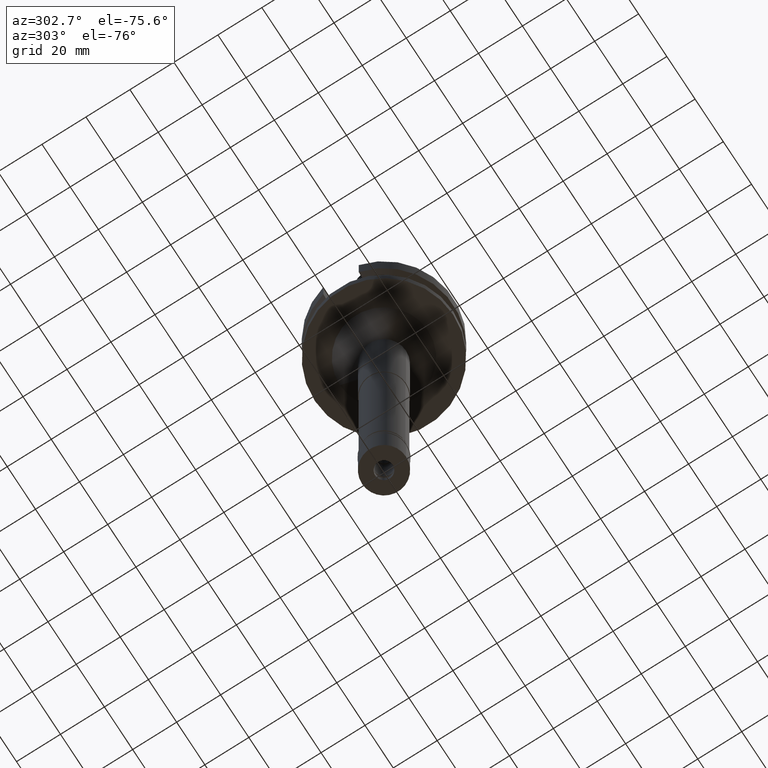
[diagram: clean part render]
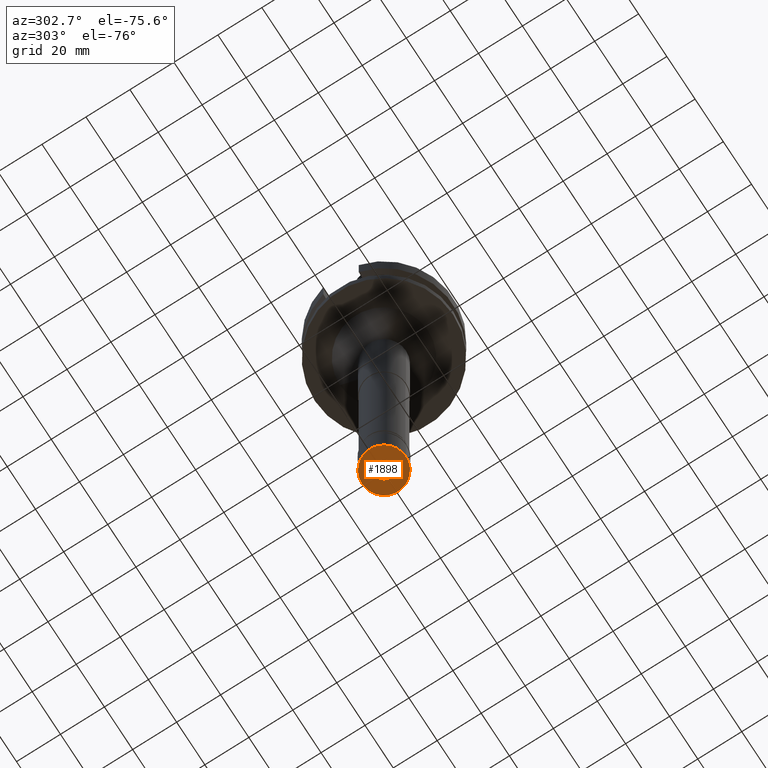
[diagram: same view with one face highlighted and labeled with its STEP entity id]
A machine part, auxiliary view. The second image highlights one B-rep face of the part: STEP entity #1898.
In plain terms, the highlighted planar face has unit normal (0, 0, -1).
Its self-contained STEP definition (entity closure, byte-faithful):
#144 = ORIENTED_EDGE ( 'NONE', *, *, #2375, .F. ) ;
#264 = CIRCLE ( 'NONE', #630, 3.950000000000000178 ) ;
#382 = CARTESIAN_POINT ( 'NONE',  ( 0.0000000000000000000, 3.950000000000000178, -20.60000000000000142 ) ) ;
#427 = AXIS2_PLACEMENT_3D ( 'NONE', #2863, #672, #2147 ) ;
#540 = AXIS2_PLACEMENT_3D ( 'NONE', #1220, #985, #2695 ) ;
#629 = CARTESIAN_POINT ( 'NONE',  ( 0.0000000000000000000, 0.0000000000000000000, -20.60000000000000142 ) ) ;
#630 = AXIS2_PLACEMENT_3D ( 'NONE', #3077, #2300, #2369 ) ;
#672 = DIRECTION ( 'NONE',  ( 0.0000000000000000000, 0.0000000000000000000, 1.000000000000000000 ) ) ;
#773 = EDGE_CURVE ( 'NONE', #2666, #1257, #264, .T. ) ;
#781 = EDGE_LOOP ( 'NONE', ( #144, #2439 ) ) ;
#818 = DIRECTION ( 'NONE',  ( 0.0000000000000000000, -1.000000000000000000, 0.0000000000000000000 ) ) ;
#834 = AXIS2_PLACEMENT_3D ( 'NONE', #629, #1860, #2845 ) ;
#850 = ORIENTED_EDGE ( 'NONE', *, *, #2186, .F. ) ;
#945 = CARTESIAN_POINT ( 'NONE',  ( 0.0000000000000000000, -3.950000000000000178, -20.60000000000000142 ) ) ;
#985 = DIRECTION ( 'NONE',  ( 0.0000000000000000000, 0.0000000000000000000, 1.000000000000000000 ) ) ;
#1022 = CARTESIAN_POINT ( 'NONE',  ( 0.0000000000000000000, -10.00000000000000000, -20.60000000000000142 ) ) ;
#1101 = ORIENTED_EDGE ( 'NONE', *, *, #3102, .F. ) ;
#1220 = CARTESIAN_POINT ( 'NONE',  ( 0.0000000000000000000, 0.0000000000000000000, -20.60000000000000142 ) ) ;
#1257 = VERTEX_POINT ( 'NONE', #382 ) ;
#1350 = CIRCLE ( 'NONE', #834, 3.950000000000000178 ) ;
#1698 = VERTEX_POINT ( 'NONE', #2092 ) ;
#1752 = CARTESIAN_POINT ( 'NONE',  ( 0.0000000000000000000, 0.0000000000000000000, -20.60000000000000142 ) ) ;
#1812 = DIRECTION ( 'NONE',  ( 0.0000000000000000000, 0.0000000000000000000, -1.000000000000000000 ) ) ;
#1860 = DIRECTION ( 'NONE',  ( 0.0000000000000000000, 0.0000000000000000000, -1.000000000000000000 ) ) ;
#1898 = ADVANCED_FACE ( 'NONE', ( #2792, #2523 ), #2054, .T. ) ;
#2054 = PLANE ( 'NONE',  #2678 ) ;
#2092 = CARTESIAN_POINT ( 'NONE',  ( 0.0000000000000000000, 10.00000000000000000, -20.60000000000000142 ) ) ;
#2147 = DIRECTION ( 'NONE',  ( 0.0000000000000000000, 1.000000000000000000, 0.0000000000000000000 ) ) ;
#2186 = EDGE_CURVE ( 'NONE', #1698, #2706, #2578, .T. ) ;
#2279 = CIRCLE ( 'NONE', #540, 10.00000000000000000 ) ;
#2300 = DIRECTION ( 'NONE',  ( 0.0000000000000000000, 0.0000000000000000000, -1.000000000000000000 ) ) ;
#2369 = DIRECTION ( 'NONE',  ( 0.0000000000000000000, -1.000000000000000000, 0.0000000000000000000 ) ) ;
#2375 = EDGE_CURVE ( 'NONE', #1257, #2666, #1350, .T. ) ;
#2420 = EDGE_LOOP ( 'NONE', ( #850, #1101 ) ) ;
#2439 = ORIENTED_EDGE ( 'NONE', *, *, #773, .F. ) ;
#2523 = FACE_BOUND ( 'NONE', #781, .T. ) ;
#2578 = CIRCLE ( 'NONE', #427, 10.00000000000000000 ) ;
#2666 = VERTEX_POINT ( 'NONE', #945 ) ;
#2678 = AXIS2_PLACEMENT_3D ( 'NONE', #1752, #1812, #818 ) ;
#2695 = DIRECTION ( 'NONE',  ( 0.0000000000000000000, -1.000000000000000000, 0.0000000000000000000 ) ) ;
#2706 = VERTEX_POINT ( 'NONE', #1022 ) ;
#2792 = FACE_OUTER_BOUND ( 'NONE', #2420, .T. ) ;
#2845 = DIRECTION ( 'NONE',  ( 0.0000000000000000000, 1.000000000000000000, 0.0000000000000000000 ) ) ;
#2863 = CARTESIAN_POINT ( 'NONE',  ( 0.0000000000000000000, 0.0000000000000000000, -20.60000000000000142 ) ) ;
#3077 = CARTESIAN_POINT ( 'NONE',  ( 0.0000000000000000000, 0.0000000000000000000, -20.60000000000000142 ) ) ;
#3102 = EDGE_CURVE ( 'NONE', #2706, #1698, #2279, .T. ) ;